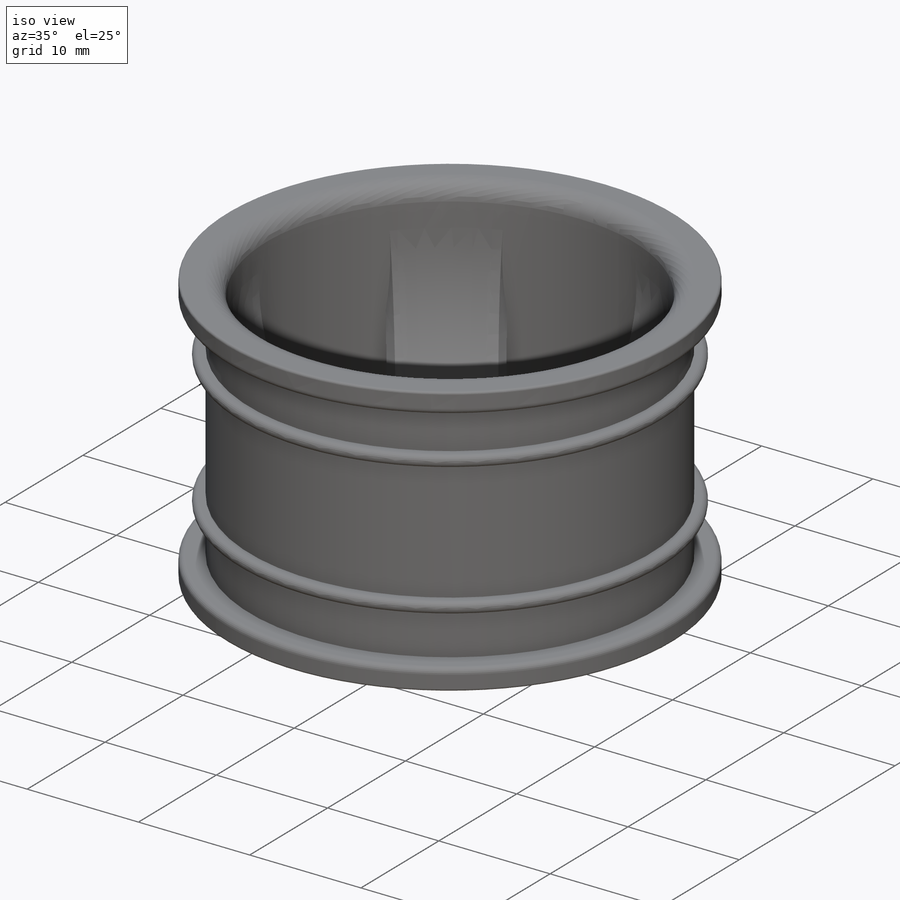
[diagram: iso view]
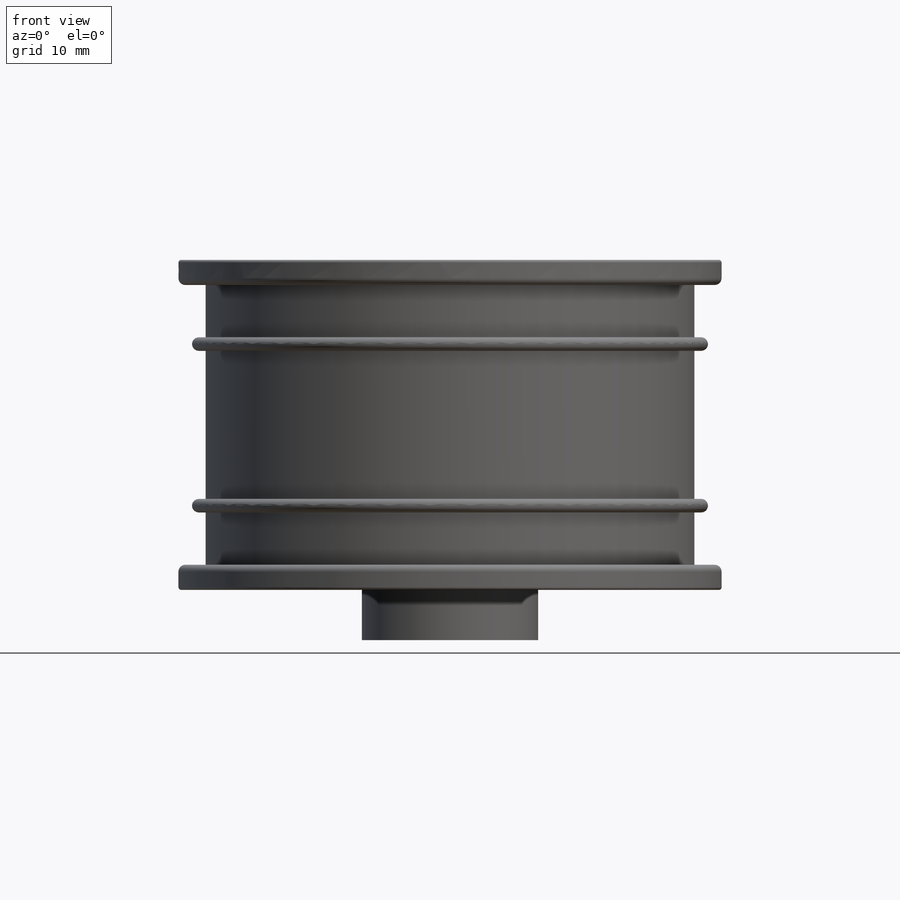
[diagram: front view]
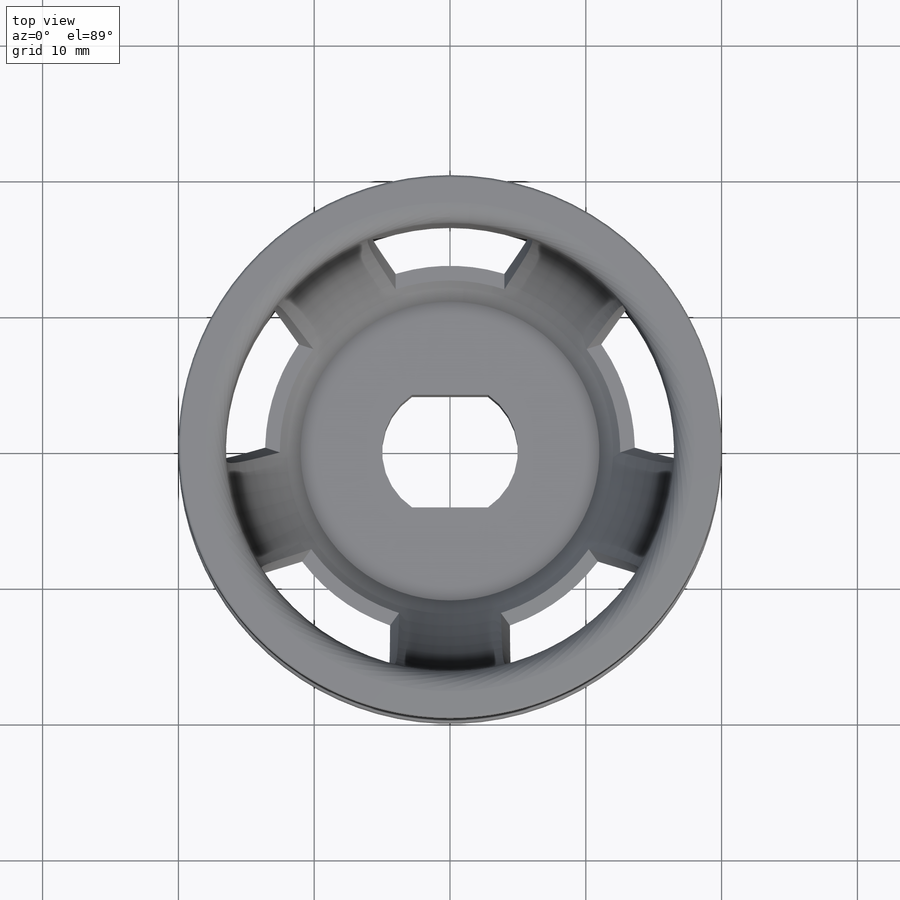
[diagram: top view]
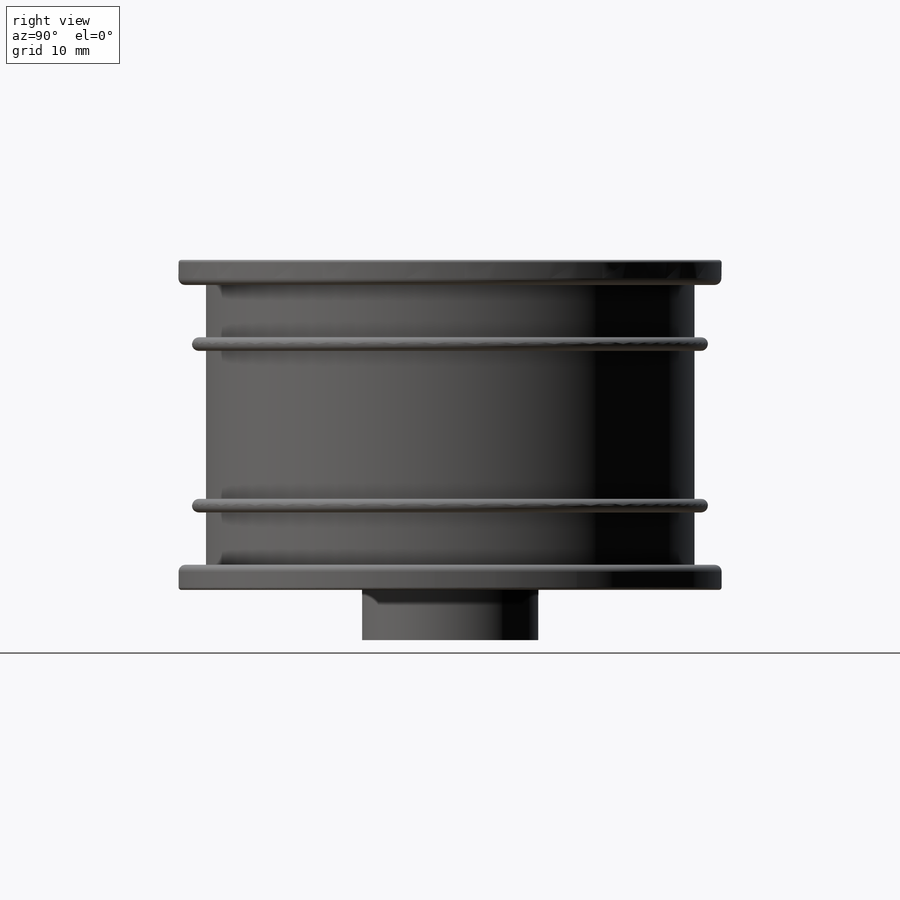
[diagram: right view]
SOLIDWORKS PART (.sldprt)
format: sldprt  version: not decoded by parser v0  size: 813,568 bytes
history: native  units: mm
features: sketch x7, plane x5, revolve x2, cut_extrude x2, pattern_circular x2, material x1, fillet x1, extrude x1 (+10 scaffold rows collapsed)
feature tree (31):
  scaffold x10  (default folders/planes/origin — collapsed)
  material  "材质 <未指定>"
  plane  "前视基准面"
  plane  "上视基准面"
  plane  "右视基准面"
  sketch  "草图1"  dims[c1.D9=1.5mm c1.D10=0.2mm c1.D11=0.2mm c1.D1=24.3mm c1.D2=1.85mm c1.D3=3.85mm c1.D4=1.0mm c1.D5=1.0mm c1.D6=20.0mm c1.D7=18.0mm c1.D8=3.5mm c2.D11=21.3mm]
  revolve  "旋转1"  Angle=360deg
  plane  "基准面1"  Offset=24mm
  sketch  "草图6"  dims[c1.D4=~24.116448mm c1.D1=18.5mm c1.D2=~6.499998mm c1.D3=~11.000002mm c2.D4=~3.599998mm c2.D5=~3.999998mm c2.D6=~0.999998mm c2.D7=1.0mm c2.D8=4.5mm c2.D9=16.5mm c2.D11=~2.293754mm c3.D8=3.7mm c3.D11=6.0mm c3.D12=~6.121314mm c3.D9=16.5mm c4.D12=~5.286438mm c4.D10=5.0mm c4.D9=16.5mm c5.D12=~11.499994mm c5.D10=1.0mm]
  sketch  "草图7"  dims[c1.D1=~32.666393mm c1.D3=30.0mm c2.D1=1.5mm c2.D2=6.0mm c2.D4=4.0mm c2.D5=8.0mm c3.D1=7.8mm c3.D5=12.9mm]
  revolve  "旋转2"  Angle=360deg
  cut_extrude  "切除-拉伸1"  [1 undecoded]
  pattern_circular  "阵列(圆周)1"  Count=5 Angle=72deg
  sketch  "草图8"  dims[D1=10.0mm D2=5.6mm]
  cut_extrude  "切除-拉伸2"  [1 undecoded]
  fillet  "圆角1"  Radius=0.5mm
  sketch  "草图9"  dims[D1=5.0mm D2=11.5mm D3=16.5mm]
  plane  "基准面2"
  sketch  "草图10"  dims[D1=0.5mm D2=0.5mm]
  extrude  "凸台-拉伸1"  [1 undecoded]
  pattern_circular  "阵列(圆周)2"  Count=5 Angle=72deg
  sketch  "草图12"
decode coverage: 11 of 15 modeling features carry decoded parameters
note: ~ marks probable driven/reference dimensions
note: 3 parameter values undecoded
summary: no parameter record found for 3 features
note: suppression state not decoded; provenance and decode notes live in map.json
